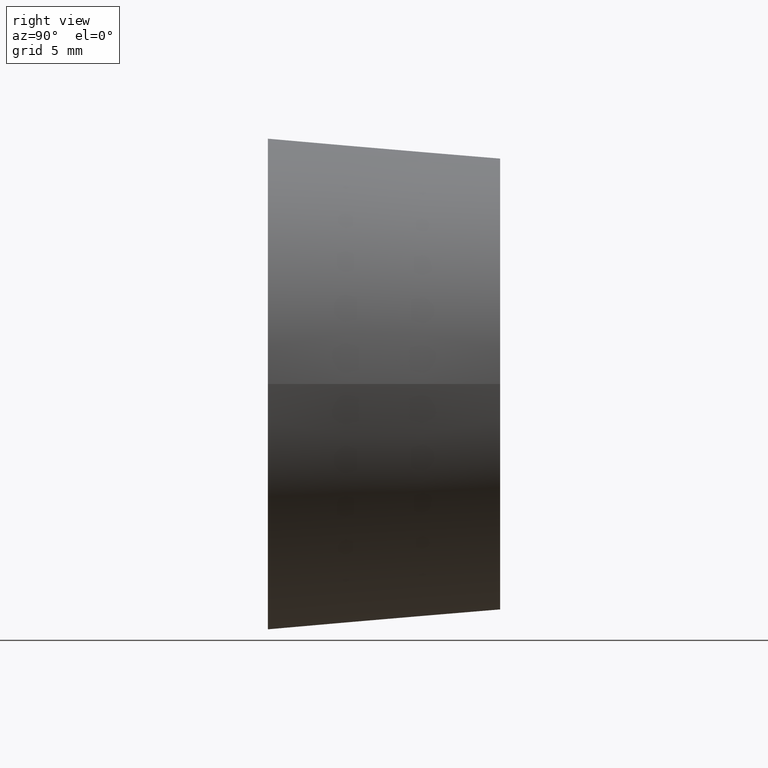
[diagram: clean part render]
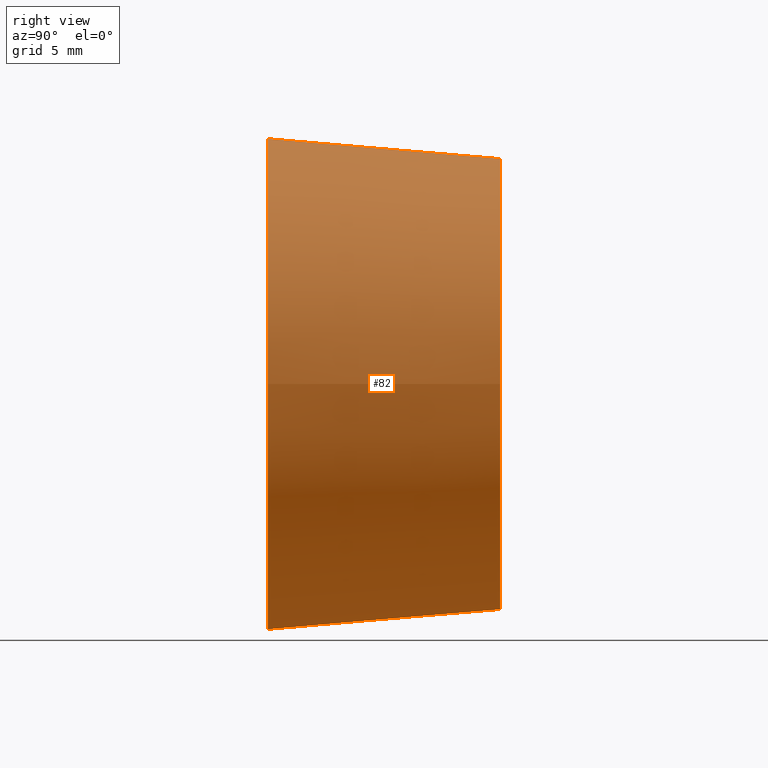
[diagram: same view with one face highlighted and labeled with its STEP entity id]
A machine part, right view. The second image highlights one B-rep face of the part: STEP entity #82.
In plain terms, the highlighted conical surface has half-angle 4.899 deg.
Its self-contained STEP definition (entity closure, byte-faithful):
#15=CONICAL_SURFACE('',#97,18.5,4.89909245378776);
#22=FACE_BOUND('',#41,.T.);
#29=FACE_OUTER_BOUND('',#40,.T.);
#40=EDGE_LOOP('',(#70));
#41=EDGE_LOOP('',(#71));
#46=CIRCLE('',#94,17.);
#47=CIRCLE('',#96,18.5);
#52=VERTEX_POINT('',#140);
#53=VERTEX_POINT('',#143);
#58=EDGE_CURVE('',#52,#52,#46,.T.);
#59=EDGE_CURVE('',#53,#53,#47,.T.);
#70=ORIENTED_EDGE('',*,*,#59,.T.);
#71=ORIENTED_EDGE('',*,*,#58,.T.);
#82=ADVANCED_FACE('',(#29,#22),#15,.T.);
#94=AXIS2_PLACEMENT_3D('',#141,#118,#119);
#96=AXIS2_PLACEMENT_3D('',#144,#122,#123);
#97=AXIS2_PLACEMENT_3D('',#145,#124,#125);
#118=DIRECTION('center_axis',(0.,-1.,0.));
#119=DIRECTION('ref_axis',(1.,0.,0.));
#122=DIRECTION('center_axis',(0.,1.,0.));
#123=DIRECTION('ref_axis',(1.,0.,0.));
#124=DIRECTION('center_axis',(0.,-1.,0.));
#125=DIRECTION('ref_axis',(1.,0.,0.));
#140=CARTESIAN_POINT('',(17.,17.5,0.));
#141=CARTESIAN_POINT('Origin',(0.,17.5,0.));
#143=CARTESIAN_POINT('',(18.5,0.,0.));
#144=CARTESIAN_POINT('Origin',(0.,0.,0.));
#145=CARTESIAN_POINT('Origin',(0.,0.,0.));